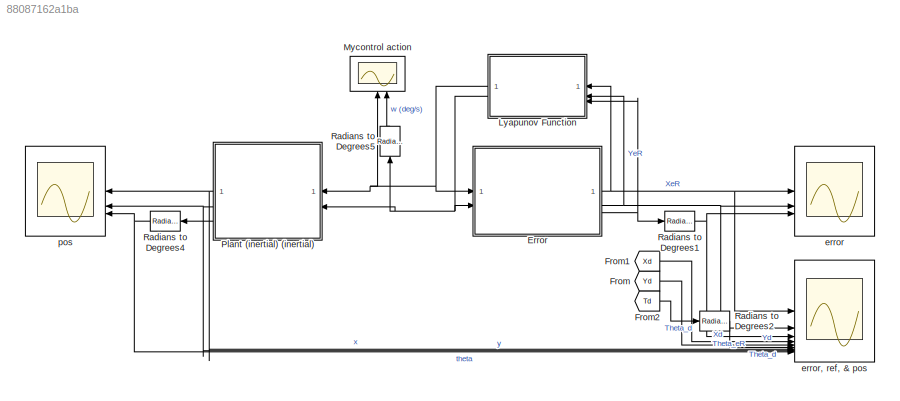
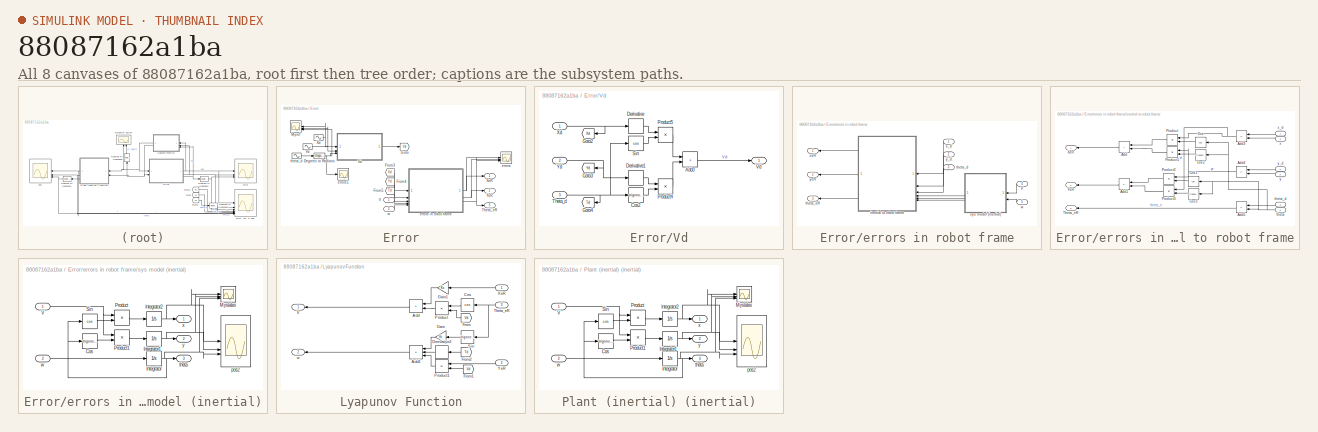
[diagram: thumbnail index - all 8 canvases of the model, root first then tree order]
MODEL slx_88087162a1ba
KIND model
CONFIG AbsTol = auto
CONFIG EnableMultiTasking = off
CONFIG FixedStep = auto
CONFIG MaxStep = auto
CONFIG MinStep = auto
CONFIG RelTol = 1e-3
CONFIG SampleTimeConstraint = Unconstrained
CONFIG SolverName = VariableStepAuto
CONFIG StartTime = 0.0
CONFIG StopTime = 50
WORKSPACE source: mxarray member
WORKSPACE Sig: Simulink.Signal (value not decoded)
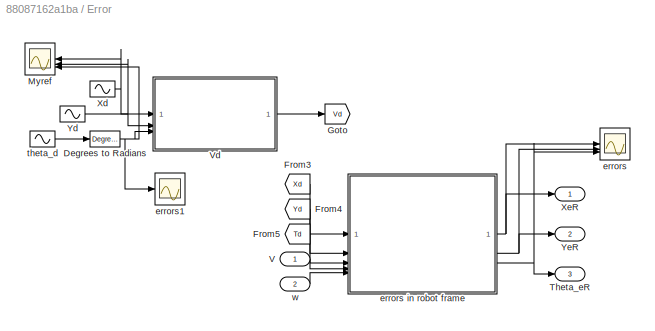
BLOCK [SubSystem] Error
BLOCK [Reference] Error/Degrees to Radians  REF=simulink_extras/Transformations/Degrees to
Radians
  SourceBlock = simulink_extras/Transformations/Degrees to\nRadians
  SourceType = DegreesToRadians
BLOCK [From] Error/From3
  GotoTag = Xd
  NameLocation = top
  TagVisibility = global
BLOCK [From] Error/From4
  GotoTag = Yd
  NameLocation = top
  TagVisibility = global
BLOCK [From] Error/From5
  GotoTag = Td
  NameLocation = top
  TagVisibility = global
BLOCK [Goto] Error/Goto
  GotoTag = Vd
  TagVisibility = global
BLOCK [Scope] Error/Myref
  Floating = off
  NameLocation = top
  NumInputPorts = 3
  ScopeSpecificationString = Simulink.scopes.TimeScopeBlockCfg('CurrentConfiguration', extmgr.ConfigurationSet(extmgr.Configuration('Core','General UI',true),extmgr.Configuration('Core','Source UI',true),extmgr.Configuration('Sources','WiredSimulink',true,'DataLoggingVariableName','ScopeData3'),extmgr.Configuration('Visuals','Time Domain',true,'SerializedDisplays',{struct('MinYLimReal','-25.00000','MaxYLimReal','24.99998','YL...<+2788ch>
BLOCK [Outport] Error/Theta_eR
  Port = 3
BLOCK [Inport] Error/V
  NameLocation = left
BLOCK [SubSystem] Error/Vd
BLOCK [Sum] Error/Vd/Add3
  IconShape = rectangular
BLOCK [Trigonometry] Error/Vd/Cos2
BLOCK [Derivative] Error/Vd/Derivative
BLOCK [Derivative] Error/Vd/Derivative1
BLOCK [Goto] Error/Vd/Goto2
  GotoTag = Xd
  NameLocation = top
  TagVisibility = global
BLOCK [Goto] Error/Vd/Goto3
  GotoTag = Yd
  NameLocation = top
  TagVisibility = global
BLOCK [Goto] Error/Vd/Goto4
  GotoTag = Td
  NameLocation = top
  TagVisibility = global
BLOCK [Product] Error/Vd/Product4
BLOCK [Product] Error/Vd/Product5
BLOCK [Trigonometry] Error/Vd/Sin
  Operator = cos
BLOCK [Inport] Error/Vd/Theta_d
  Port = 3
BLOCK [Outport] Error/Vd/Vd
BLOCK [Inport] Error/Vd/Xd
BLOCK [Inport] Error/Vd/Yd
  Port = 2
BLOCK [Sin] Error/Xd
  Amplitude = xd
  Phase = pi/4
  SampleTime = 0
BLOCK [Outport] Error/XeR
BLOCK [Sin] Error/Yd
  Amplitude = yd
  Phase = pi/4
  SampleTime = 0
BLOCK [Outport] Error/YeR
  Port = 2
BLOCK [Scope] Error/errors
  Floating = off
  NumInputPorts = 3
  ScopeSpecificationString = Simulink.scopes.TimeScopeBlockCfg('CurrentConfiguration', extmgr.ConfigurationSet(extmgr.Configuration('Core','General UI',true),extmgr.Configuration('Core','Source UI',true),extmgr.Configuration('Sources','WiredSimulink',true,'DataLoggingVariableName','ScopeData1'),extmgr.Configuration('Visuals','Time Domain',true,'SerializedDisplays',{struct('MinYLimReal','-25.00000','MaxYLimReal','24.99998','YL...<+2788ch>
BLOCK [SubSystem] Error/errors in robot frame
BLOCK [Inport] Error/errors in robot frame/V
  NameLocation = top
  Port = 4
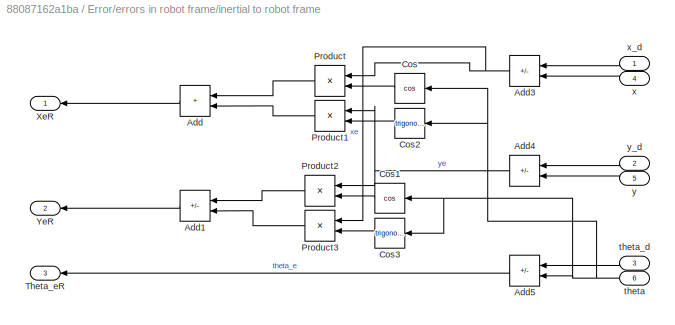
BLOCK [SubSystem] Error/errors in robot frame/inertial to robot frame
BLOCK [Sum] Error/errors in robot frame/inertial to robot frame/Add
  IconShape = rectangular
  NameLocation = top
BLOCK [Sum] Error/errors in robot frame/inertial to robot frame/Add1
  IconShape = rectangular
  Inputs = +-
  NameLocation = top
BLOCK [Sum] Error/errors in robot frame/inertial to robot frame/Add3
  IconShape = rectangular
  Inputs = +-
  NameLocation = top
BLOCK [Sum] Error/errors in robot frame/inertial to robot frame/Add4
  IconShape = rectangular
  Inputs = +-
  NameLocation = top
BLOCK [Sum] Error/errors in robot frame/inertial to robot frame/Add5
  IconShape = rectangular
  Inputs = +-
  NameLocation = top
BLOCK [Trigonometry] Error/errors in robot frame/inertial to robot frame/Cos
  NameLocation = top
  Operator = cos
BLOCK [Trigonometry] Error/errors in robot frame/inertial to robot frame/Cos1
  NameLocation = top
  Operator = cos
BLOCK [Trigonometry] Error/errors in robot frame/inertial to robot frame/Cos2
  NameLocation = top
BLOCK [Trigonometry] Error/errors in robot frame/inertial to robot frame/Cos3
  NameLocation = top
BLOCK [Product] Error/errors in robot frame/inertial to robot frame/Product
  NameLocation = top
BLOCK [Product] Error/errors in robot frame/inertial to robot frame/Product1
  NameLocation = top
BLOCK [Product] Error/errors in robot frame/inertial to robot frame/Product2
  NameLocation = top
BLOCK [Product] Error/errors in robot frame/inertial to robot frame/Product3
  NameLocation = top
BLOCK [Outport] Error/errors in robot frame/inertial to robot frame/Theta_eR
  Port = 3
BLOCK [Outport] Error/errors in robot frame/inertial to robot frame/XeR
BLOCK [Outport] Error/errors in robot frame/inertial to robot frame/YeR
  Port = 2
BLOCK [Inport] Error/errors in robot frame/inertial to robot frame/theta
  Port = 6
BLOCK [Inport] Error/errors in robot frame/inertial to robot frame/theta_d
  NameLocation = top
  Port = 3
BLOCK [Inport] Error/errors in robot frame/inertial to robot frame/x
  Port = 4
BLOCK [Inport] Error/errors in robot frame/inertial to robot frame/x_d
  NameLocation = top
BLOCK [Inport] Error/errors in robot frame/inertial to robot frame/y
  Port = 5
BLOCK [Inport] Error/errors in robot frame/inertial to robot frame/y_d
  NameLocation = top
  Port = 2
BLOCK [SubSystem] Error/errors in robot frame/sys model (inertial)
BLOCK [Trigonometry] Error/errors in robot frame/sys model (inertial)/Cos
BLOCK [Integrator] Error/errors in robot frame/sys model (inertial)/Integrator
BLOCK [Integrator] Error/errors in robot frame/sys model (inertial)/Integrator1
BLOCK [Integrator] Error/errors in robot frame/sys model (inertial)/Integrator2
BLOCK [Scope] Error/errors in robot frame/sys model (inertial)/Mystates
  Floating = off
  NumInputPorts = 3
  ScopeSpecificationString = Simulink.scopes.TimeScopeBlockCfg('CurrentConfiguration', extmgr.ConfigurationSet(extmgr.Configuration('Core','General UI',true),extmgr.Configuration('Core','Source UI',true),extmgr.Configuration('Sources','WiredSimulink',true,'DataLoggingVariableName','ScopeData2'),extmgr.Configuration('Visuals','Time Domain',true,'SerializedDisplays',{struct('MinYLimReal','-25.0121','MaxYLimReal','25.08822','YLa...<+2791ch>
BLOCK [Product] Error/errors in robot frame/sys model (inertial)/Product
BLOCK [Product] Error/errors in robot frame/sys model (inertial)/Product1
BLOCK [Trigonometry] Error/errors in robot frame/sys model (inertial)/Sin
  Operator = cos
BLOCK [Inport] Error/errors in robot frame/sys model (inertial)/V
BLOCK [Scope] Error/errors in robot frame/sys model (inertial)/pos2
  Floating = off
  NumInputPorts = 3
  ScopeSpecificationString = Simulink.scopes.TimeScopeBlockCfg('CurrentConfiguration', extmgr.ConfigurationSet(extmgr.Configuration('Core','General UI',true),extmgr.Configuration('Core','Source UI',true),extmgr.Configuration('Sources','WiredSimulink',true,'DataLoggingVariableName','ScopeData1'),extmgr.Configuration('Visuals','Time Domain',true,'SerializedDisplays',{struct('MinYLimReal','-4.91091','MaxYLimReal','44.19821','YLa...<+2903ch>
BLOCK [Outport] Error/errors in robot frame/sys model (inertial)/theta
  Port = 3
BLOCK [Inport] Error/errors in robot frame/sys model (inertial)/w
  Port = 2
BLOCK [Outport] Error/errors in robot frame/sys model (inertial)/x
BLOCK [Outport] Error/errors in robot frame/sys model (inertial)/y
  Port = 2
BLOCK [Inport] Error/errors in robot frame/theta_d
  NameLocation = top
  Port = 3
BLOCK [Outport] Error/errors in robot frame/theta_eR
  NameLocation = top
  Port = 3
BLOCK [Inport] Error/errors in robot frame/w
  Port = 5
BLOCK [Inport] Error/errors in robot frame/x_d
  NameLocation = top
BLOCK [Outport] Error/errors in robot frame/xeR
  NameLocation = top
BLOCK [Inport] Error/errors in robot frame/y_d
  NameLocation = top
  Port = 2
BLOCK [Outport] Error/errors in robot frame/yeR
  NameLocation = top
  Port = 2
BLOCK [Scope] Error/errors1
  Floating = off
  NumInputPorts = 3
  ScopeSpecificationString = Simulink.scopes.TimeScopeBlockCfg('CurrentConfiguration', extmgr.ConfigurationSet(extmgr.Configuration('Core','General UI',true),extmgr.Configuration('Core','Source UI',true),extmgr.Configuration('Sources','WiredSimulink',true,'DataLoggingVariableName','ScopeData1'),extmgr.Configuration('Visuals','Time Domain',true,'SerializedDisplays',{struct('MinYLimReal','-0.21817','MaxYLimReal','0.21817','YLab...<+2784ch>
BLOCK [Sin] Error/theta_d
  Amplitude = thetad
  Phase = pi/4
  SampleTime = 0
BLOCK [Inport] Error/w
  NameLocation = left
  Port = 2
BLOCK [From] From
  GotoTag = Yd
  TagVisibility = global
BLOCK [From] From1
  GotoTag = Xd
  TagVisibility = global
BLOCK [From] From2
  GotoTag = Td
  TagVisibility = global
BLOCK [SubSystem] Lyapunov Function
BLOCK [Sum] Lyapunov Function/Add
  IconShape = rectangular
  NameLocation = top
BLOCK [Sum] Lyapunov Function/Add1
  IconShape = rectangular
  Inputs = +++
  NameLocation = top
BLOCK [Trigonometry] Lyapunov Function/Cos
  NameLocation = top
  Operator = cos
BLOCK [Derivative] Lyapunov Function/Derivative2
  NameLocation = top
BLOCK [From] Lyapunov Function/From
  GotoTag = Vd
  TagVisibility = global
BLOCK [From] Lyapunov Function/From1
  GotoTag = Vd
  TagVisibility = global
BLOCK [From] Lyapunov Function/From2
  GotoTag = Td
  NameLocation = top
  TagVisibility = global
BLOCK [Gain] Lyapunov Function/Gain
  Gain = Kt
  NameLocation = top
BLOCK [Gain] Lyapunov Function/Gain1
  Gain = Kx
  NameLocation = top
BLOCK [Product] Lyapunov Function/Product
  NameLocation = top
BLOCK [Product] Lyapunov Function/Product1
  NameLocation = top
BLOCK [Trigonometry] Lyapunov Function/Sin
  NameLocation = top
BLOCK [Inport] Lyapunov Function/Theta_eR
  Port = 3
BLOCK [Outport] Lyapunov Function/V
  NameLocation = top
BLOCK [Inport] Lyapunov Function/XeR
BLOCK [Inport] Lyapunov Function/YeR
  Port = 2
BLOCK [Outport] Lyapunov Function/w
  NameLocation = top
  Port = 2
BLOCK [Scope] Mycontrol action
  Floating = off
  NameLocation = top
  NumInputPorts = 2
  ScopeSpecificationString = Simulink.scopes.TimeScopeBlockCfg('CurrentConfiguration', extmgr.ConfigurationSet(extmgr.Configuration('Core','General UI',true),extmgr.Configuration('Core','Source UI',true),extmgr.Configuration('Sources','WiredSimulink',true,'DataLoggingVariableName','ScopeData2'),extmgr.Configuration('Visuals','Time Domain',true,'SerializedDisplays',{struct('MinYLimReal','-947.54439','MaxYLimReal','7973.67862',...<+2051ch>
BLOCK [SubSystem] Plant (inertial) (inertial)
BLOCK [Trigonometry] Plant (inertial) (inertial)/Cos
BLOCK [Integrator] Plant (inertial) (inertial)/Integrator
BLOCK [Integrator] Plant (inertial) (inertial)/Integrator1
BLOCK [Integrator] Plant (inertial) (inertial)/Integrator2
BLOCK [Scope] Plant (inertial) (inertial)/Mystates
  Floating = off
  NumInputPorts = 3
  ScopeSpecificationString = Simulink.scopes.TimeScopeBlockCfg('CurrentConfiguration', extmgr.ConfigurationSet(extmgr.Configuration('Core','General UI',true),extmgr.Configuration('Core','Source UI',true),extmgr.Configuration('Sources','WiredSimulink',true,'DataLoggingVariableName','ScopeData2'),extmgr.Configuration('Visuals','Time Domain',true,'SerializedDisplays',{struct('MinYLimReal','-25.04491','MaxYLimReal','25.12163','YL...<+2792ch>
BLOCK [Product] Plant (inertial) (inertial)/Product
BLOCK [Product] Plant (inertial) (inertial)/Product1
BLOCK [Trigonometry] Plant (inertial) (inertial)/Sin
  Operator = cos
BLOCK [Inport] Plant (inertial) (inertial)/V
BLOCK [Scope] Plant (inertial) (inertial)/pos2
  Floating = off
  NumInputPorts = 3
  ScopeSpecificationString = Simulink.scopes.TimeScopeBlockCfg('CurrentConfiguration', extmgr.ConfigurationSet(extmgr.Configuration('Core','General UI',true),extmgr.Configuration('Core','Source UI',true),extmgr.Configuration('Sources','WiredSimulink',true,'DataLoggingVariableName','ScopeData1'),extmgr.Configuration('Visuals','Time Domain',true,'SerializedDisplays',{struct('MinYLimReal','-4.91091','MaxYLimReal','44.19821','YLa...<+2903ch>
BLOCK [Outport] Plant (inertial) (inertial)/theta
  Port = 3
BLOCK [Inport] Plant (inertial) (inertial)/w
  Port = 2
BLOCK [Outport] Plant (inertial) (inertial)/x
BLOCK [Outport] Plant (inertial) (inertial)/y
  Port = 2
BLOCK [Reference] Radians to Degrees1  REF=simulink_extras/Transformations/Radians
to Degrees
  SourceBlock = simulink_extras/Transformations/Radians\nto Degrees
  SourceType = RadiansToDegrees
BLOCK [Reference] Radians to Degrees2  REF=simulink_extras/Transformations/Radians
to Degrees
  SourceBlock = simulink_extras/Transformations/Radians\nto Degrees
  SourceType = RadiansToDegrees
BLOCK [Reference] Radians to Degrees4  REF=simulink_extras/Transformations/Radians
to Degrees
  NameLocation = top
  SourceBlock = simulink_extras/Transformations/Radians\nto Degrees
  SourceType = RadiansToDegrees
BLOCK [Reference] Radians to Degrees5  REF=simulink_extras/Transformations/Radians
to Degrees
  NameLocation = right
  SourceBlock = simulink_extras/Transformations/Radians\nto Degrees
  SourceType = RadiansToDegrees
BLOCK [Scope] error
  Floating = off
  NumInputPorts = 3
  ScopeSpecificationString = Simulink.scopes.TimeScopeBlockCfg('CurrentConfiguration', extmgr.ConfigurationSet(extmgr.Configuration('Core','General UI',true),extmgr.Configuration('Core','Source UI',true),extmgr.Configuration('Sources','WiredSimulink',true,'DataLoggingVariableName','ScopeData3'),extmgr.Configuration('Visuals','Time Domain',true,'SerializedDisplays',{struct('MinYLimReal','-129.70213','MaxYLimReal','1128.51094',...<+2807ch>
BLOCK [Scope] error, ref, & pos
  Floating = off
  NumInputPorts = 9
  ScopeSpecificationString = Simulink.scopes.TimeScopeBlockCfg('CurrentConfiguration', extmgr.ConfigurationSet(extmgr.Configuration('Core','General UI',true),extmgr.Configuration('Core','Source UI',true),extmgr.Configuration('Sources','WiredSimulink',true,'DataLoggingVariableName','ScopeData4'),extmgr.Configuration('Visuals','Time Domain',true,'SerializedDisplays',{struct('MinYLimReal','-160.58324','MaxYLimReal','174.97742','...<+7020ch>
BLOCK [Scope] pos
  Floating = off
  NumInputPorts = 3
  ScopeSpecificationString = Simulink.scopes.TimeScopeBlockCfg('CurrentConfiguration', extmgr.ConfigurationSet(extmgr.Configuration('Core','General UI',true),extmgr.Configuration('Core','Source UI',true),extmgr.Configuration('Sources','WiredSimulink',true,'DataLoggingVariableName','ScopeData2'),extmgr.Configuration('Visuals','Time Domain',true,'SerializedDisplays',{struct('MinYLimReal','-129.70213','MaxYLimReal','1128.51094',...<+2807ch>
NET Error/Degrees to Radians:1 -> Error/Myref:3, Error/Vd:3, Error/errors1:1
LINE Error/From3:1 -> Error/errors in robot frame:1
LINE Error/From4:1 -> Error/errors in robot frame:2
LINE Error/From5:1 -> Error/errors in robot frame:3
LINE Error/V:1 -> Error/errors in robot frame:4
LINE Error/Vd/Add3:1 -> Error/Vd/Vd:1
LINE Error/Vd/Cos2:1 -> Error/Vd/Product4:2
LINE Error/Vd/Derivative1:1 -> Error/Vd/Product4:1
LINE Error/Vd/Derivative:1 -> Error/Vd/Product5:1
LINE Error/Vd/Product4:1 -> Error/Vd/Add3:2
LINE Error/Vd/Product5:1 -> Error/Vd/Add3:1
LINE Error/Vd/Sin:1 -> Error/Vd/Product5:2
NET Error/Vd/Theta_d:1 -> Error/Vd/Cos2:1, Error/Vd/Goto4:1, Error/Vd/Sin:1
NET Error/Vd/Xd:1 -> Error/Vd/Derivative:1, Error/Vd/Goto2:1
NET Error/Vd/Yd:1 -> Error/Vd/Derivative1:1, Error/Vd/Goto3:1
LINE Error/Vd:1 -> Error/Goto:1
NET Error/Xd:1 -> Error/Myref:1, Error/Vd:1
NET Error/Yd:1 -> Error/Myref:2, Error/Vd:2
LINE Error/errors in robot frame/V:1 -> Error/errors in robot frame/sys model (inertial):1
LINE Error/errors in robot frame/inertial to robot frame/Add1:1 -> Error/errors in robot frame/inertial to robot frame/YeR:1
NET Error/errors in robot frame/inertial to robot frame/Add3:1 -> Error/errors in robot frame/inertial to robot frame/Product3:1, Error/errors in robot frame/inertial to robot frame/Product:1
NET Error/errors in robot frame/inertial to robot frame/Add4:1 -> Error/errors in robot frame/inertial to robot frame/Product1:1, Error/errors in robot frame/inertial to robot frame/Product2:1
LINE Error/errors in robot frame/inertial to robot frame/Add5:1 -> Error/errors in robot frame/inertial to robot frame/Theta_eR:1
LINE Error/errors in robot frame/inertial to robot frame/Add:1 -> Error/errors in robot frame/inertial to robot frame/XeR:1
LINE Error/errors in robot frame/inertial to robot frame/Cos1:1 -> Error/errors in robot frame/inertial to robot frame/Product2:2
LINE Error/errors in robot frame/inertial to robot frame/Cos2:1 -> Error/errors in robot frame/inertial to robot frame/Product1:2
LINE Error/errors in robot frame/inertial to robot frame/Cos3:1 -> Error/errors in robot frame/inertial to robot frame/Product3:2
LINE Error/errors in robot frame/inertial to robot frame/Cos:1 -> Error/errors in robot frame/inertial to robot frame/Product:2
LINE Error/errors in robot frame/inertial to robot frame/Product1:1 -> Error/errors in robot frame/inertial to robot frame/Add:2
LINE Error/errors in robot frame/inertial to robot frame/Product2:1 -> Error/errors in robot frame/inertial to robot frame/Add1:1
LINE Error/errors in robot frame/inertial to robot frame/Product3:1 -> Error/errors in robot frame/inertial to robot frame/Add1:2
LINE Error/errors in robot frame/inertial to robot frame/Product:1 -> Error/errors in robot frame/inertial to robot frame/Add:1
NET Error/errors in robot frame/inertial to robot frame/theta:1 -> Error/errors in robot frame/inertial to robot frame/Add5:2, Error/errors in robot frame/inertial to robot frame/Cos1:1, Error/errors in robot frame/inertial to robot frame/Cos2:1, Error/errors in robot frame/inertial to robot frame/Cos3:1, Error/errors in robot frame/inertial to robot frame/Cos:1
LINE Error/errors in robot frame/inertial to robot frame/theta_d:1 -> Error/errors in robot frame/inertial to robot frame/Add5:1
LINE Error/errors in robot frame/inertial to robot frame/x:1 -> Error/errors in robot frame/inertial to robot frame/Add3:2
LINE Error/errors in robot frame/inertial to robot frame/x_d:1 -> Error/errors in robot frame/inertial to robot frame/Add3:1
LINE Error/errors in robot frame/inertial to robot frame/y:1 -> Error/errors in robot frame/inertial to robot frame/Add4:2
LINE Error/errors in robot frame/inertial to robot frame/y_d:1 -> Error/errors in robot frame/inertial to robot frame/Add4:1
LINE Error/errors in robot frame/inertial to robot frame:1 -> Error/errors in robot frame/xeR:1
LINE Error/errors in robot frame/inertial to robot frame:2 -> Error/errors in robot frame/yeR:1
LINE Error/errors in robot frame/inertial to robot frame:3 -> Error/errors in robot frame/theta_eR:1
LINE Error/errors in robot frame/sys model (inertial)/Cos:1 -> Error/errors in robot frame/sys model (inertial)/Product1:2
NET Error/errors in robot frame/sys model (inertial)/Integrator1:1 -> Error/errors in robot frame/sys model (inertial)/Mystates:2, Error/errors in robot frame/sys model (inertial)/pos2:2, Error/errors in robot frame/sys model (inertial)/y:1
NET Error/errors in robot frame/sys model (inertial)/Integrator2:1 -> Error/errors in robot frame/sys model (inertial)/Mystates:1, Error/errors in robot frame/sys model (inertial)/pos2:1, Error/errors in robot frame/sys model (inertial)/x:1
NET Error/errors in robot frame/sys model (inertial)/Integrator:1 -> Error/errors in robot frame/sys model (inertial)/Cos:1, Error/errors in robot frame/sys model (inertial)/Mystates:3, Error/errors in robot frame/sys model (inertial)/Sin:1, Error/errors in robot frame/sys model (inertial)/pos2:3, Error/errors in robot frame/sys model (inertial)/theta:1
LINE Error/errors in robot frame/sys model (inertial)/Product1:1 -> Error/errors in robot frame/sys model (inertial)/Integrator1:1
LINE Error/errors in robot frame/sys model (inertial)/Product:1 -> Error/errors in robot frame/sys model (inertial)/Integrator2:1
LINE Error/errors in robot frame/sys model (inertial)/Sin:1 -> Error/errors in robot frame/sys model (inertial)/Product:2
NET Error/errors in robot frame/sys model (inertial)/V:1 -> Error/errors in robot frame/sys model (inertial)/Product1:1, Error/errors in robot frame/sys model (inertial)/Product:1
LINE Error/errors in robot frame/sys model (inertial)/w:1 -> Error/errors in robot frame/sys model (inertial)/Integrator:1
LINE Error/errors in robot frame/sys model (inertial):1 -> Error/errors in robot frame/inertial to robot frame:4
LINE Error/errors in robot frame/sys model (inertial):2 -> Error/errors in robot frame/inertial to robot frame:5
LINE Error/errors in robot frame/sys model (inertial):3 -> Error/errors in robot frame/inertial to robot frame:6
LINE Error/errors in robot frame/theta_d:1 -> Error/errors in robot frame/inertial to robot frame:3
LINE Error/errors in robot frame/w:1 -> Error/errors in robot frame/sys model (inertial):2
LINE Error/errors in robot frame/x_d:1 -> Error/errors in robot frame/inertial to robot frame:1
LINE Error/errors in robot frame/y_d:1 -> Error/errors in robot frame/inertial to robot frame:2
NET Error/errors in robot frame:1 -> Error/XeR:1, Error/errors:1
NET Error/errors in robot frame:2 -> Error/YeR:1, Error/errors:2
NET Error/errors in robot frame:3 -> Error/Theta_eR:1, Error/errors:3
LINE Error/theta_d:1 -> Error/Degrees to Radians:1
LINE Error/w:1 -> Error/errors in robot frame:5
NET Error:1 -> Lyapunov Function:1, error, ref, & pos:1, error:1
NET Error:2 -> Lyapunov Function:2, error, ref, & pos:2, error:2
NET Error:3 -> Lyapunov Function:3, Radians to Degrees1:1
LINE From1:1 -> error, ref, & pos:4
LINE From2:1 -> Radians to Degrees2:1
LINE From:1 -> error, ref, & pos:5
LINE Lyapunov Function/Add1:1 -> Lyapunov Function/w:1
LINE Lyapunov Function/Add:1 -> Lyapunov Function/V:1
LINE Lyapunov Function/Cos:1 -> Lyapunov Function/Product:1
LINE Lyapunov Function/Derivative2:1 -> Lyapunov Function/Add1:2
LINE Lyapunov Function/From1:1 -> Lyapunov Function/Product1:2
LINE Lyapunov Function/From2:1 -> Lyapunov Function/Derivative2:1
LINE Lyapunov Function/From:1 -> Lyapunov Function/Product:2
LINE Lyapunov Function/Gain1:1 -> Lyapunov Function/Add:1
LINE Lyapunov Function/Gain:1 -> Lyapunov Function/Add1:1
LINE Lyapunov Function/Product1:1 -> Lyapunov Function/Add1:3
LINE Lyapunov Function/Product:1 -> Lyapunov Function/Add:2
LINE Lyapunov Function/Sin:1 -> Lyapunov Function/Gain:1
NET Lyapunov Function/Theta_eR:1 -> Lyapunov Function/Cos:1, Lyapunov Function/Sin:1
LINE Lyapunov Function/XeR:1 -> Lyapunov Function/Gain1:1
LINE Lyapunov Function/YeR:1 -> Lyapunov Function/Product1:1
NET Lyapunov Function:1 -> Error:1, Mycontrol action:1, Plant (inertial) (inertial):1
NET Lyapunov Function:2 -> Error:2, Plant (inertial) (inertial):2, Radians to Degrees5:1
LINE Plant (inertial) (inertial)/Cos:1 -> Plant (inertial) (inertial)/Product1:2
NET Plant (inertial) (inertial)/Integrator1:1 -> Plant (inertial) (inertial)/Mystates:2, Plant (inertial) (inertial)/pos2:2, Plant (inertial) (inertial)/y:1
NET Plant (inertial) (inertial)/Integrator2:1 -> Plant (inertial) (inertial)/Mystates:1, Plant (inertial) (inertial)/pos2:1, Plant (inertial) (inertial)/x:1
NET Plant (inertial) (inertial)/Integrator:1 -> Plant (inertial) (inertial)/Cos:1, Plant (inertial) (inertial)/Mystates:3, Plant (inertial) (inertial)/Sin:1, Plant (inertial) (inertial)/pos2:3, Plant (inertial) (inertial)/theta:1
LINE Plant (inertial) (inertial)/Product1:1 -> Plant (inertial) (inertial)/Integrator1:1
LINE Plant (inertial) (inertial)/Product:1 -> Plant (inertial) (inertial)/Integrator2:1
LINE Plant (inertial) (inertial)/Sin:1 -> Plant (inertial) (inertial)/Product:2
NET Plant (inertial) (inertial)/V:1 -> Plant (inertial) (inertial)/Product1:1, Plant (inertial) (inertial)/Product:1
LINE Plant (inertial) (inertial)/w:1 -> Plant (inertial) (inertial)/Integrator:1
NET Plant (inertial) (inertial):1 -> error, ref, & pos:7, pos:1
NET Plant (inertial) (inertial):2 -> error, ref, & pos:8, pos:2
LINE Plant (inertial) (inertial):3 -> Radians to Degrees4:1
NET Radians to Degrees1:1 -> error, ref, & pos:3, error:3
LINE Radians to Degrees2:1 -> error, ref, & pos:6
NET Radians to Degrees4:1 -> error, ref, & pos:9, pos:3
LINE Radians to Degrees5:1 -> Mycontrol action:2
note: NET lines group one-source signal fan-out (src -> all destinations, sorted); 1:1 wires keep LINE
